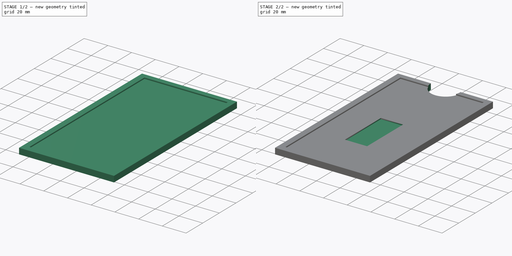
[diagram: build sequence overview — one tinted view per stage of 2, left to right]
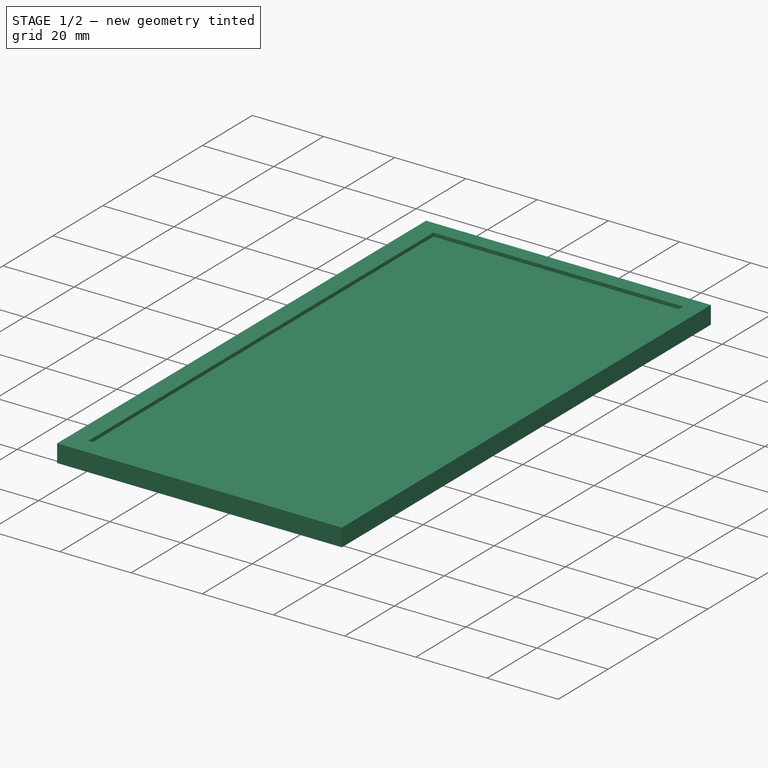
[diagram: stage 1 of 2 — iso view after this stage's code; geometry added in this stage tinted green]
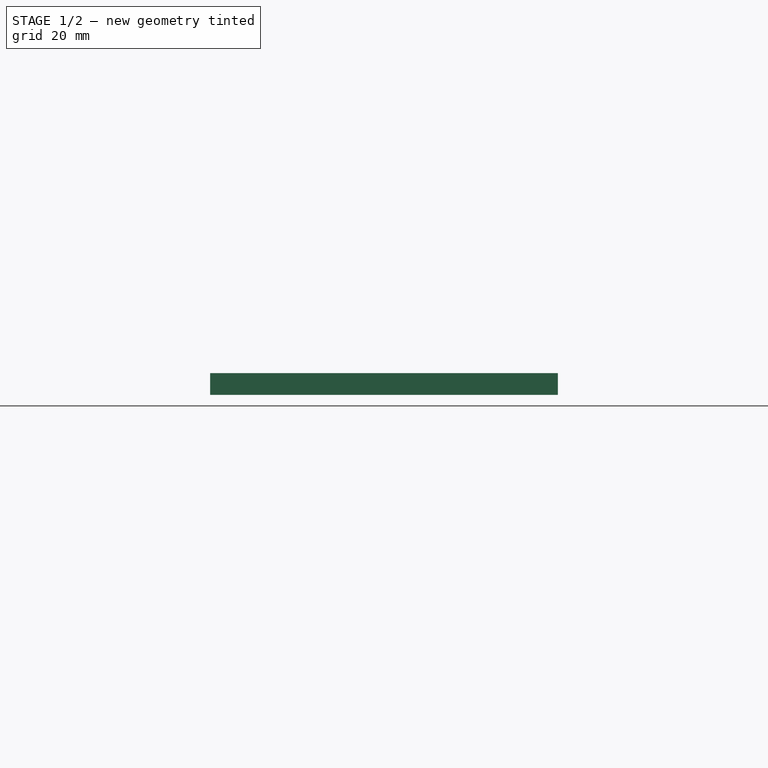
[diagram: stage 1 of 2 — front view after this stage's code; geometry added in this stage tinted green]
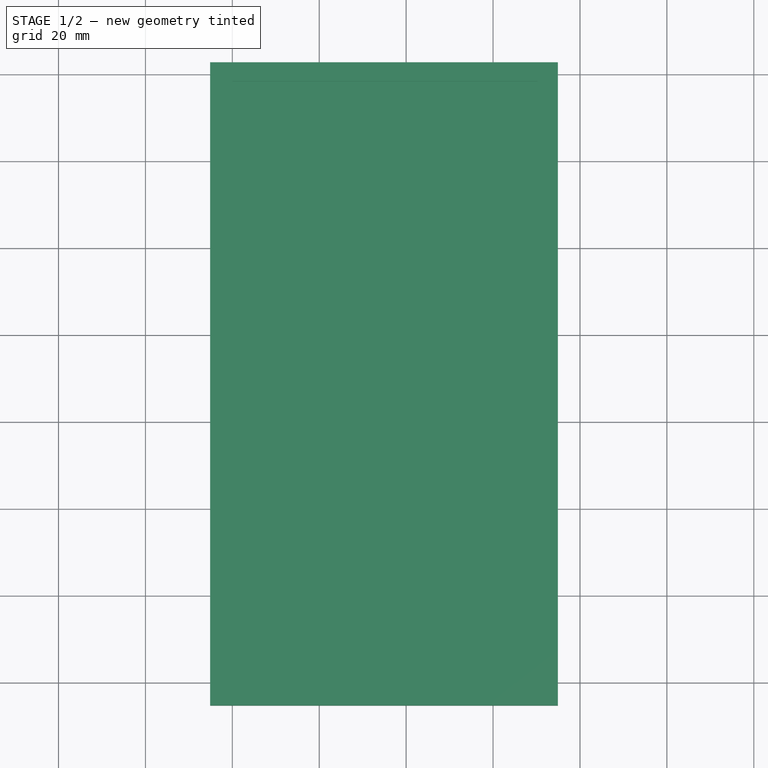
[diagram: stage 1 of 2 — top view after this stage's code; geometry added in this stage tinted green]
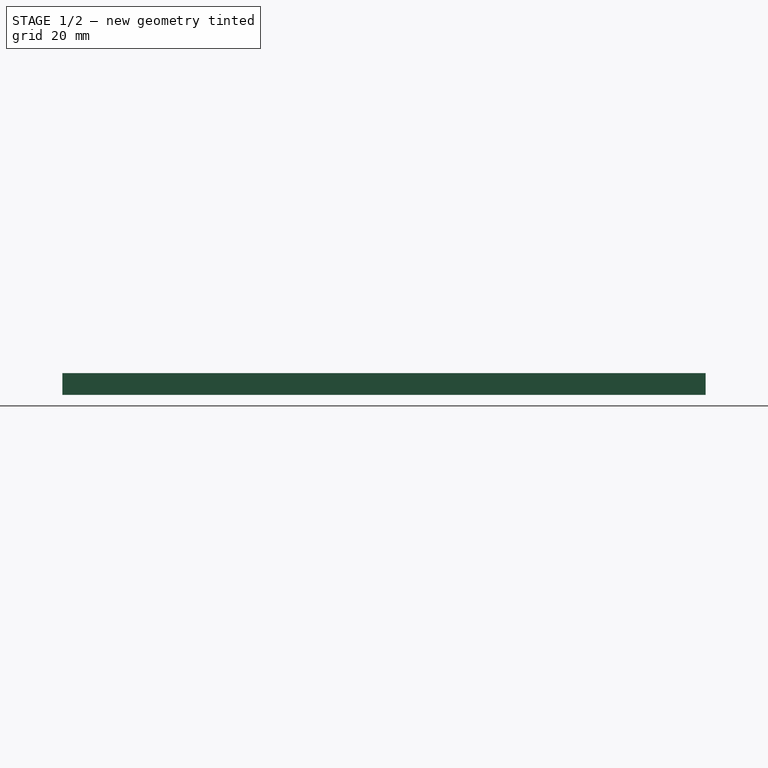
[diagram: stage 1 of 2 — right view after this stage's code; geometry added in this stage tinted green]
FCSTD DOCUMENT  (FreeCAD 0.19R24276 (Git))
Label: aisler_stencil_helper
License: All rights reserved
LicenseURL: http://en.wikipedia.org/wiki/All_rights_reserved
objects: Part::Feature×16, App::Part×16, Sketcher::SketchObject×5, PartDesign::Pocket×3, PartDesign::Pad×1, PartDesign::Body×1
note: 30 computed .brp shape members not serialized (recipe doc carries the construction recipe); baked Part::Feature solids carry a one-line shape summary decoded from their .brp

FEATURE [Sketcher::SketchObject] Sketch
  FullyConstrained = true
  MapMode = 5
  Support = -> [XY_Plane]
  sketch-geometry (4):
    g0: LineSegment StartX=0 StartY=0 StartZ=0 EndX=70.2 EndY=0 EndZ=0
    g1: LineSegment StartX=70.2 StartY=0 StartZ=0 EndX=70.2 EndY=138.4 EndZ=0
    g2: LineSegment StartX=70.2 StartY=138.4 StartZ=0 EndX=0 EndY=138.4 EndZ=0
    g3: LineSegment StartX=0 StartY=138.4 StartZ=0 EndX=0 EndY=0 EndZ=0
  constraints (11):
    c: Coincident(g0,g1)
    c: Coincident(g1,g2)
    c: Coincident(g2,g3)
    c: Coincident(g3,g0)
    c: Horizontal(g0)
    c: Horizontal(g2)
    c: Vertical(g1)
    c: Vertical(g3)
    c: Coincident(g0,g-1)
    c: Distance(g1) = 138.4
    c: Distance(g0) = 70.2
FEATURE [Sketcher::SketchObject] Sketch001
  FullyConstrained = true
  MapMode = 5
  Support = -> [XY_Plane]
  sketch-geometry (4):
    g0: LineSegment StartX=-5.1 StartY=142.75 StartZ=0 EndX=74.9 EndY=142.75 EndZ=0
    g1: LineSegment StartX=74.9 StartY=142.75 StartZ=0 EndX=74.9 EndY=-5.25 EndZ=0
    g2: LineSegment StartX=74.9 StartY=-5.25 StartZ=0 EndX=-5.1 EndY=-5.25 EndZ=0
    g3: LineSegment StartX=-5.1 StartY=-5.25 StartZ=0 EndX=-5.1 EndY=142.75 EndZ=0
  constraints (12):
    c: Coincident(g0,g1)
    c: Coincident(g1,g2)
    c: Coincident(g2,g3)
    c: Coincident(g3,g0)
    c: Horizontal(g0)
    c: Horizontal(g2)
    c: Vertical(g1)
    c: Vertical(g3)
    c: Distance(g0) = 80
    c: Distance(g1) = 148
    c: DistanceX(g2,g-1) = 5.1
    c: DistanceY(g2,g-1) = 5.25
FEATURE [PartDesign::Pad] Pad
  Direction = (1,1,1)
  Length = 5
  Length2 = 100
  Profile = -> Sketch001
  Reversed = true
  Type = 0
FEATURE [PartDesign::Pocket] Pocket
  BaseFeature = -> Pad
  Length = 1
  Length2 = 100
  Profile = -> Sketch
  Type = 0
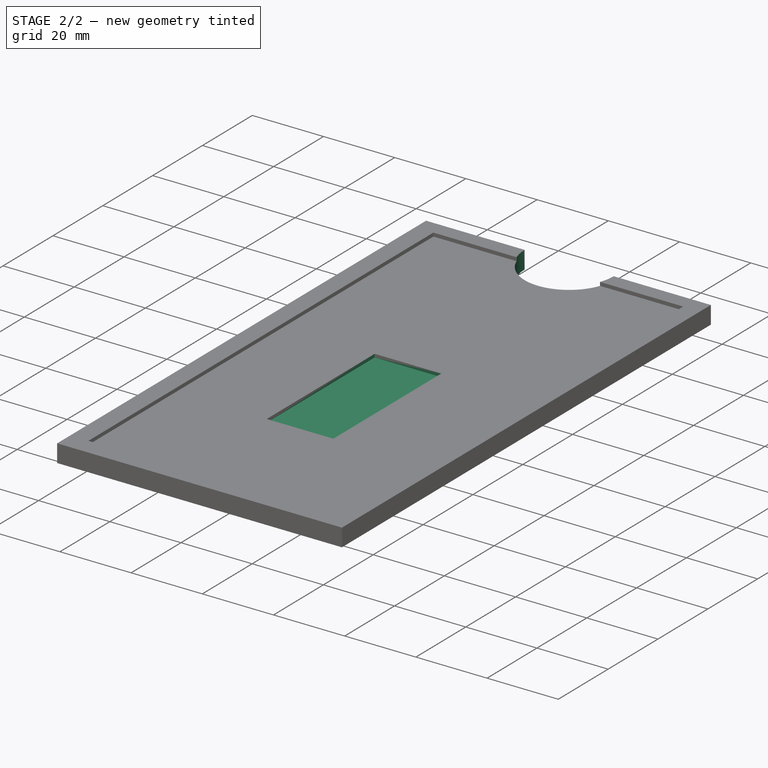
[diagram: stage 2 of 2 — iso view after this stage's code; geometry added in this stage tinted green]
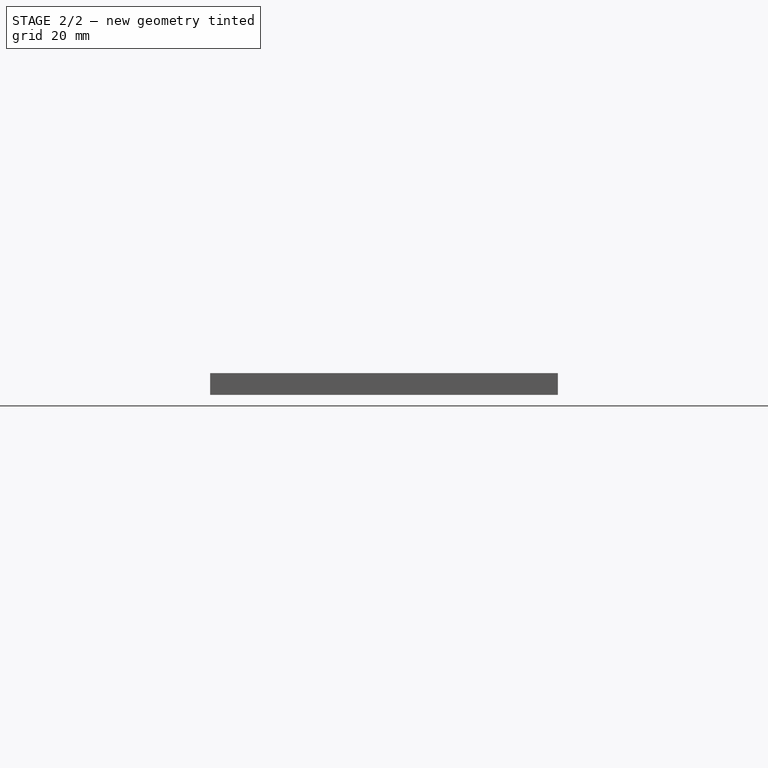
[diagram: stage 2 of 2 — front view after this stage's code; geometry added in this stage tinted green]
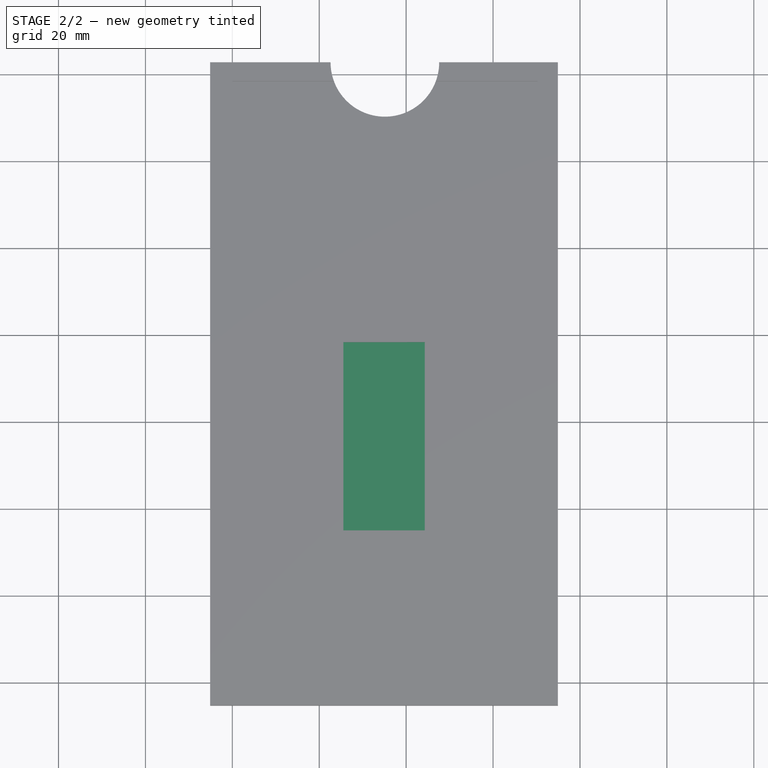
[diagram: stage 2 of 2 — top view after this stage's code; geometry added in this stage tinted green]
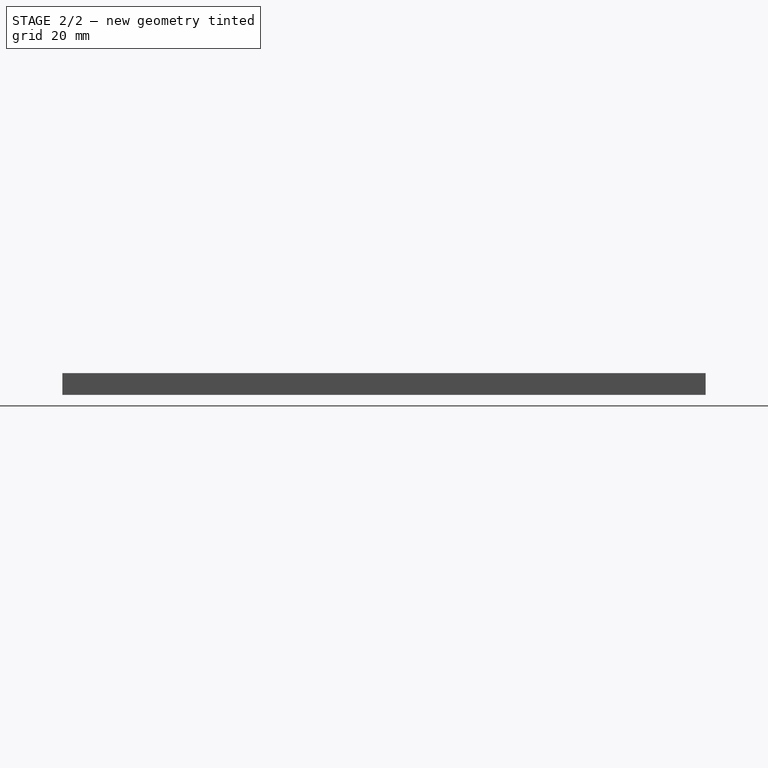
[diagram: stage 2 of 2 — right view after this stage's code; geometry added in this stage tinted green]
FEATURE [Part::Feature] Part__Feature  label="C_0603_1608Metric"
  shape: bbox 1.6 x 0.8 x 0.8 mm, 28 faces (baked)
FEATURE [App::Part] C_0603_1608Metric  label="C_0603_1608Metric001"
  Group = -> [Part__Feature]
  Origin = -> Origin001
  Placement = pos=(2.5,0.623832,0.836) rot=(0,0,1;0rad)
FEATURE [Part::Feature] Part__Feature001  label="C_0603_1608Metric002"
  shape: bbox 1.6 x 0.8 x 0.8 mm, 28 faces (baked)
FEATURE [App::Part] C_0603_1608Metric001  label="C_0603_1608Metric003"
  Group = -> [Part__Feature001]
  Origin = -> Origin002
  Placement = pos=(-2,-4.62617,0.836) rot=(0,0,1;0rad)
FEATURE [Part::Feature] Part__Feature002  label="C_0603_1608Metric004"
  shape: bbox 1.6 x 0.8 x 0.8 mm, 28 faces (baked)
FEATURE [App::Part] C_0603_1608Metric002  label="C_0603_1608Metric005"
  Group = -> [Part__Feature002]
  Origin = -> Origin003
  Placement = pos=(-2,-2.32617,0.836) rot=(0,0,1;1.5708rad)
FEATURE [Part::Feature] Part__Feature003  label="C_0603_1608Metric006"
  shape: bbox 1.6 x 0.8 x 0.8 mm, 28 faces (baked)
FEATURE [App::Part] C_0603_1608Metric003  label="C_0603_1608Metric007"
  Group = -> [Part__Feature003]
  Origin = -> Origin004
  Placement = pos=(-0.399997,-2.32617,0.836) rot=(0,0,1;1.5708rad)
FEATURE [Part::Feature] Part__Feature004  label="QFN-16-1EP_3x3mm_P0.5mm_EP1.7x1.7mm"
  shape: bbox 3 x 3 x 0.785 mm, 110 faces (baked)
FEATURE [App::Part] QFN_16_1EP_3x3mm_P0_5mm_EP1_7x1_7mm  label="QFN-16-1EP_3x3mm_P0.5mm_EP1.7x1.7mm001"
  Group = -> [Part__Feature004]
  Origin = -> Origin005
  Placement = pos=(3,-3.28796,0.836) rot=(0,0,1;1.5708rad)
FEATURE [Part::Feature] Part__Feature005  label="WSON_6_1EP_2x2mm_P065mm_EP1x16mm"
  shape: bbox 2 x 1.98 x 0.82 mm, 50 faces (baked)
FEATURE [App::Part] WSON_6_1EP_2x2mm_P0_65mm_EP1x1_6mm  label="WSON-6-1EP_2x2mm_P0.65mm_EP1x1.6mm"
  Group = -> [Part__Feature005]
  Origin = -> Origin006
  Placement = pos=(3e-06,14.3738,0.836) rot=(0,0,-1;1.5708rad)
FEATURE [Part::Feature] Part__Feature006  label="C_0603_1608Metric008"
  shape: bbox 1.6 x 0.8 x 0.8 mm, 28 faces (baked)
FEATURE [App::Part] C_0603_1608Metric004  label="C_0603_1608Metric009"
  Group = -> [Part__Feature006]
  Origin = -> Origin007
  Placement = pos=(-2,-6.17617,0.836) rot=(0,0,1;0rad)
FEATURE [Part::Feature] Part__Feature007  label="UQFN-20-1EP_3x3mm_Pitch0.4mm"
  shape: bbox 3 x 3 x 0.52 mm, 134 faces (baked)
FEATURE [App::Part] UQFN_20_1EP_3x3mm_P0_4mm_EP1_85x1_85mm  label="UQFN-20-1EP_3x3mm_P0.4mm_EP1.85x1.85mm"
  Group = -> [Part__Feature007]
  Origin = -> Origin008
  Placement = pos=(-2.15,3.07383,0.836) rot=(0,0,1;0rad)
FEATURE [Part::Feature] Part__Feature008  label="C_0603_1608Metric010"
  shape: bbox 1.6 x 0.8 x 0.8 mm, 28 faces (baked)
FEATURE [App::Part] C_0603_1608Metric005  label="C_0603_1608Metric011"
  Group = -> [Part__Feature008]
  Origin = -> Origin009
  Placement = pos=(-3.6,-2.32617,0.836) rot=(0,0,1;1.5708rad)
FEATURE [Part::Feature] Part__Feature009  label="D_0603"
  shape: bbox 1.6 x 0.87 x 0.66 mm, 39 faces (baked)
FEATURE [App::Part] D_0603_1608Metric
  Group = -> [Part__Feature009]
  Origin = -> Origin010
  Placement = pos=(0.800003,-8.67617,0.836) rot=(0,0,-1;1.5708rad)
FEATURE [Part::Feature] Part__Feature010  label="R_0603_1608Metric"
  shape: bbox 1.6 x 0.8 x 0.45 mm, 26 faces (baked)
FEATURE [App::Part] R_0603_1608Metric  label="R_0603_1608Metric001"
  Group = -> [Part__Feature010]
  Origin = -> Origin011
  Placement = pos=(2.5,4.87383,0.836) rot=(0,0,1;0rad)
FEATURE [Part::Feature] Part__Feature011  label="C_0402_1005Metric"
  shape: bbox 1 x 0.5 x 0.5 mm, 28 faces (baked)
FEATURE [App::Part] C_0402_1005Metric  label="C_0402_1005Metric001"
  Group = -> [Part__Feature011]
  Origin = -> Origin012
  Placement = pos=(3e-06,12.4238,0.836) rot=(0,0,1;3.14159rad)
FEATURE [Part::Feature] Part__Feature012  label="C_0402_1005Metric002"
  shape: bbox 1 x 0.5 x 0.5 mm, 28 faces (baked)
FEATURE [App::Part] C_0402_1005Metric001  label="C_0402_1005Metric003"
  Group = -> [Part__Feature012]
  Origin = -> Origin013
  Placement = pos=(2.5,-6.62617,0.836) rot=(0,0,1;3.14159rad)
FEATURE [Part::Feature] Part__Feature013  label="R_0603_1608Metric002"
  shape: bbox 1.6 x 0.8 x 0.45 mm, 26 faces (baked)
FEATURE [App::Part] R_0603_1608Metric001  label="R_0603_1608Metric003"
  Group = -> [Part__Feature013]
  Origin = -> Origin014
  Placement = pos=(2.5,2.52383,0.836) rot=(0,0,1;0rad)
FEATURE [Part::Feature] Part__Feature014  label="D_0604"
  shape: bbox 1.6 x 0.87 x 0.66 mm, 39 faces (baked)
FEATURE [App::Part] D_0603_1608Metric001
  Group = -> [Part__Feature014]
  Origin = -> Origin015
  Placement = pos=(-0.799997,-8.67617,0.836) rot=(0,0,-1;1.5708rad)
FEATURE [Part::Feature] Part__Feature015  label="nfc_sense_PCB"
  shape: bbox 18.6 x 43.15 x 0.786 mm, 19 faces (baked)
FEATURE [App::Part] nfc_sense_1  label="nfc_sense 1"
  Group = -> [C_0603_1608Metric,C_0603_1608Metric001,C_0603_1608Metric002,C_0603_1608Metric003,QFN_16_1EP_3x3mm_P0_5mm_EP1_7x1_7mm,WSON_6_1EP_2x2mm_P0_65mm_EP1x1_6mm,C_0603_1608Metric004,UQFN_20_1EP_3x3mm_P0_4mm_EP1_85x1_85mm,C_0603_1608Metric005,D_0603_1608Metric,R_0603_1608Metric,C_0402_1005Metric,C_0402_1005Metric001,R_0603_1608Metric001,D_0603_1608Metric001,Part__Feature015]
  Origin = -> Origin016
  Placement = pos=(34.9,56.7,-1.7) rot=(0,0,1;0rad)
FEATURE [Sketcher::SketchObject] Sketch002
  FullyConstrained = false
  MapMode = 5
  Support = -> [XY_Plane]
  sketch-geometry (4):
    g0: LineSegment StartX=38.76 StartY=62.0263 StartZ=0 EndX=36.17 EndY=62.0263 EndZ=0
    g1: LineSegment StartX=36.17 StartY=62.0263 StartZ=0 EndX=36.17 EndY=61.25 EndZ=0
    g2: LineSegment StartX=36.17 StartY=61.25 StartZ=0 EndX=38.76 EndY=61.25 EndZ=0
    g3: LineSegment StartX=38.76 StartY=61.25 StartZ=0 EndX=38.76 EndY=62.0263 EndZ=0
  constraints (11):
    c: Coincident(g0,g1)
    c: Coincident(g1,g2)
    c: Coincident(g2,g3)
    c: Coincident(g3,g0)
    c: Horizontal(g0)
    c: Horizontal(g2)
    c: Vertical(g1)
    c: Vertical(g3)
    c: DistanceX(g-1,g1) = 36.17
    c: DistanceX(g-1,g2) = 38.76
    c: DistanceY(g-1,g1) = 61.25
FEATURE [Sketcher::SketchObject] Sketch003
  FullyConstrained = false
  MapMode = 5
  Support = -> [XY_Plane]
  sketch-geometry (4):
    g0: LineSegment StartX=25.5544 StartY=78.3503 StartZ=0 EndX=44.2681 EndY=78.3503 EndZ=0
    g1: LineSegment StartX=44.2681 StartY=78.3503 StartZ=0 EndX=44.2681 EndY=35.0407 EndZ=0
    g2: LineSegment StartX=44.2681 StartY=35.0407 StartZ=0 EndX=25.5544 EndY=35.0407 EndZ=0
    g3: LineSegment StartX=25.5544 StartY=35.0407 StartZ=0 EndX=25.5544 EndY=78.3503 EndZ=0
  constraints (8):
    c: Coincident(g0,g1)
    c: Coincident(g1,g2)
    c: Coincident(g2,g3)
    c: Coincident(g3,g0)
    c: Horizontal(g0)
    c: Horizontal(g2)
    c: Vertical(g1)
    c: Vertical(g3)
FEATURE [PartDesign::Pocket] Pocket001
  BaseFeature = -> Pocket
  Length = 1.925
  Length2 = 100
  Profile = -> Sketch003
  Type = 0
FEATURE [Sketcher::SketchObject] Sketch004
  FullyConstrained = true
  MapMode = 5
  Support = -> [XY_Plane]
  sketch-geometry (2):
    g0: LineSegment StartX=22.6 StartY=142.75 StartZ=0 EndX=47.6 EndY=142.75 EndZ=0
    g1: ArcOfCircle CenterX=35.1 CenterY=142.75 CenterZ=0 NormalX=0 NormalY=0 NormalZ=1 AngleXU=0 Radius=12.5 StartAngle=3.14159 EndAngle=6.28319
  constraints (7):
    c: Horizontal(g0)
    c: Distance(g0) = 25
    c: PointOnObject(g1,g0)
    c: Coincident(g1,g0)
    c: Coincident(g1,g0)
    c: DistanceX(g-1,g1) = 35.1
    c: DistanceY(g-1,g1) = 142.75
FEATURE [PartDesign::Pocket] Pocket002
  BaseFeature = -> Pocket001
  Length = 5
  Length2 = 100
  Profile = -> Sketch004
  Type = 0
FEATURE [PartDesign::Body] Body
  Group = -> [Sketch,Sketch001,Pad,Pocket,Sketch002,Sketch003,Pocket001,Sketch004,Pocket002]
  Origin = -> Origin
  Tip = -> Pocket002
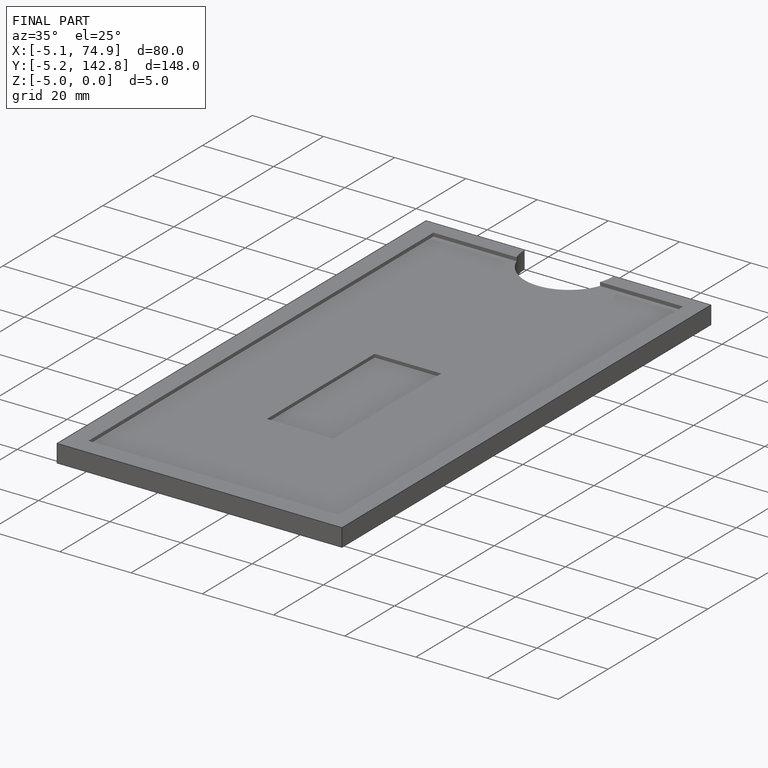
[diagram: finished part — iso view with bounding-box wireframe]
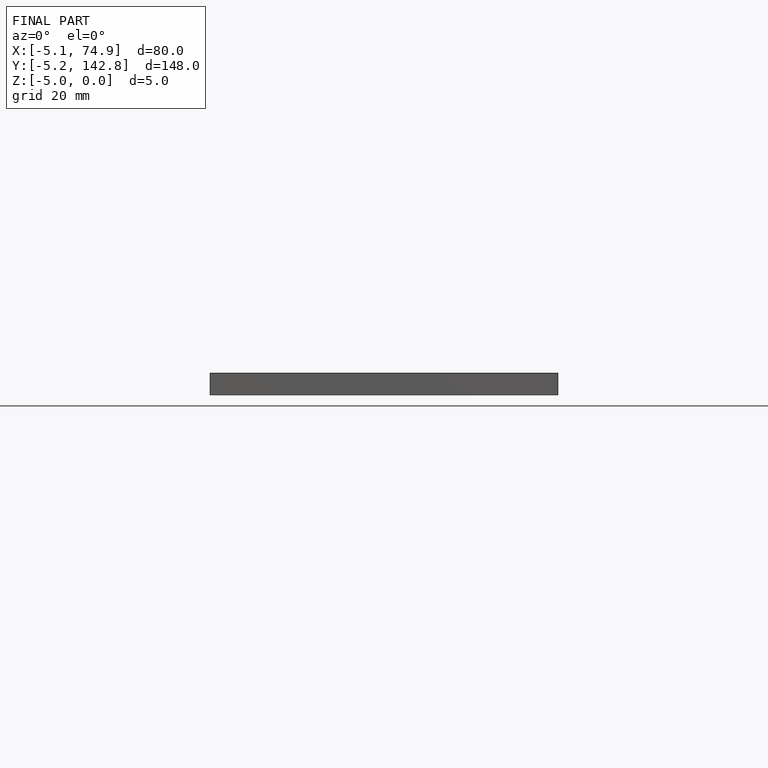
[diagram: finished part — front view with bounding-box wireframe]
